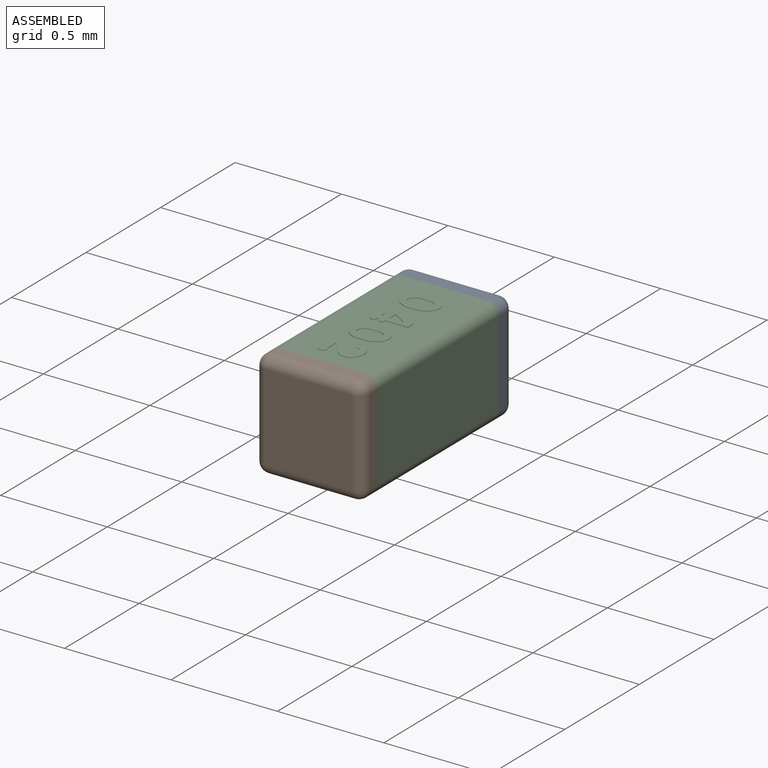
[diagram: assembled view]
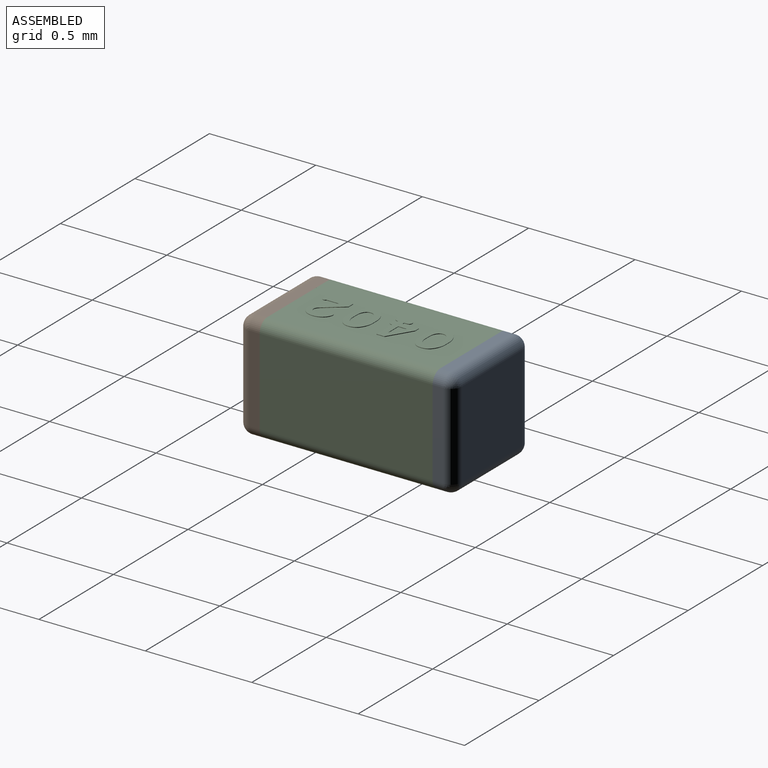
[diagram: assembled view, second angle]
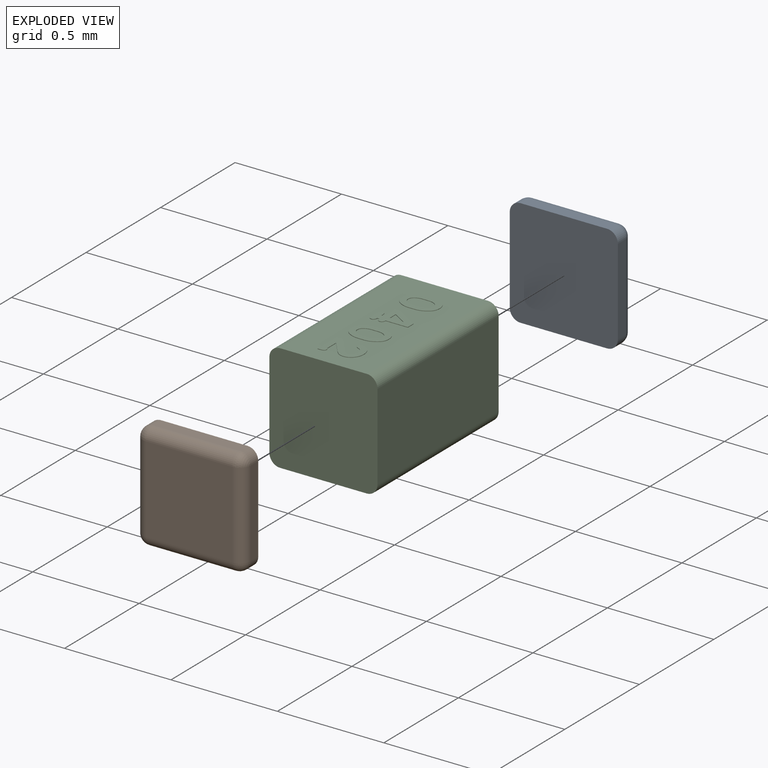
[diagram: exploded view]
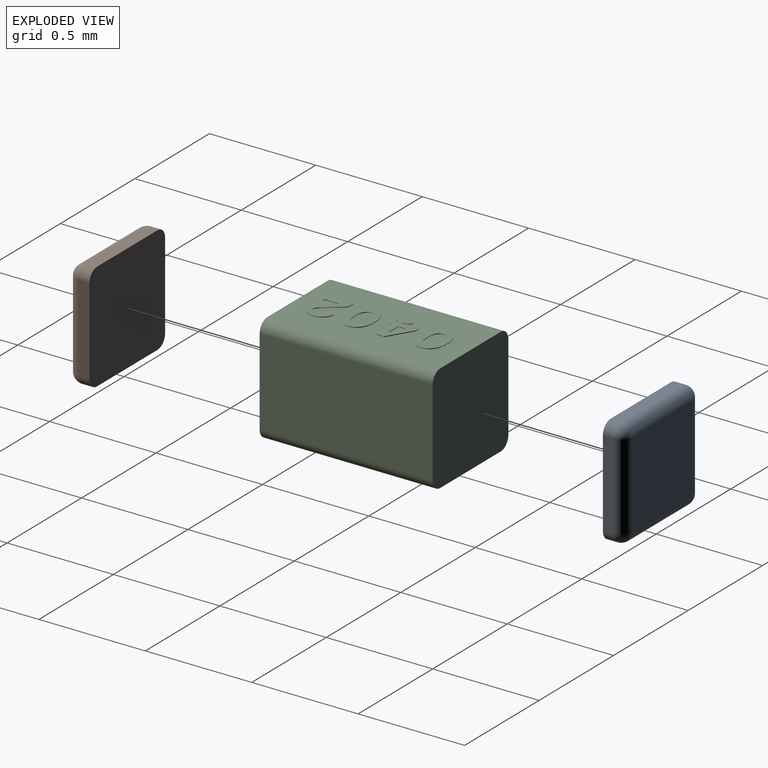
[diagram: exploded view, second angle]
ASSEMBLY  parts=3 mates=2
PART A: 18 faces, bbox 0.1x0.5x0.5 mm
  f0: plane 0.51x0.51mm, normal (1,0,0), area 0.3mm2, adj f1,f2,f3,f4,f5,f6,f7,f8
  f1: cylinder r=0.05mm len=0.05mm, axis (1,0,0), area 0mm2, adj f0,f2,f8,f9
  f2: plane 0.41x0.05mm, normal (0,1,0), area 0mm2, adj f0,f1,f3,f10
  f3: cylinder r=0.05mm len=0.05mm, axis (1,0,0), area 0mm2, adj f0,f2,f4,f11
  f4: plane 0.41x0.05mm, normal (0,0,-1), area 0mm2, adj f0,f3,f5,f12
  f5: cylinder r=0.05mm len=0.05mm, axis (1,0,0), area 0mm2, adj f0,f4,f6,f13
  f6: plane 0.41x0.05mm, normal (0,-1,0), area 0mm2, adj f0,f5,f7,f14
  f7: cylinder r=0.05mm len=0.05mm, axis (1,0,0), area 0mm2, adj f0,f6,f8,f15
  f8: plane 0.41x0.05mm, normal (0,0,1), area 0mm2, adj f0,f1,f7,f16
  f9: sphere r=0.05mm, area 0mm2, adj f1,f10,f16
  f10: cylinder r=0.05mm len=0.41mm, axis (0,0,-1), area 0mm2, adj f2,f9,f11,f17
  f11: sphere r=0.05mm, area 0mm2, adj f3,f10,f12
  f12: cylinder r=0.05mm len=0.41mm, axis (0,-1,0), area 0mm2, adj f4,f11,f13,f17
  f13: sphere r=0.05mm, area 0mm2, adj f5,f12,f14
  f14: cylinder r=0.05mm len=0.41mm, axis (0,0,1), area 0mm2, adj f6,f13,f15,f17
  f15: sphere r=0.05mm, area 0mm2, adj f7,f14,f16
  f16: cylinder r=0.05mm len=0.41mm, axis (0,1,0), area 0mm2, adj f8,f9,f15,f17
  f17: plane 0.41x0.41mm, normal (-1,0,0), area 0.2mm2, adj f10,f12,f14,f16
PART B: 18 faces, bbox 0.1x0.5x0.5 mm
  f0: plane 0.51x0.51mm, normal (-1,0,0), area 0.3mm2, adj f1,f2,f3,f4,f5,f6,f7,f8
  f1: plane 0.41x0.05mm, normal (0,0,1), area 0mm2, adj f0,f2,f8,f9
  f2: cylinder r=0.05mm len=0.05mm, axis (-1,0,0), area 0mm2, adj f0,f1,f3,f10
  f3: plane 0.41x0.05mm, normal (0,1,0), area 0mm2, adj f0,f2,f4,f11
  f4: cylinder r=0.05mm len=0.05mm, axis (-1,0,0), area 0mm2, adj f0,f3,f5,f12
  f5: plane 0.41x0.05mm, normal (0,0,-1), area 0mm2, adj f0,f4,f6,f13
  f6: cylinder r=0.05mm len=0.05mm, axis (-1,0,0), area 0mm2, adj f0,f5,f7,f14
  f7: plane 0.41x0.05mm, normal (0,-1,0), area 0mm2, adj f0,f6,f8,f15
  f8: cylinder r=0.05mm len=0.05mm, axis (-1,0,0), area 0mm2, adj f0,f1,f7,f16
  f9: cylinder r=0.05mm len=0.41mm, axis (0,1,0), area 0mm2, adj f1,f10,f16,f17
  f10: sphere r=0.05mm, area 0mm2, adj f2,f9,f11
  f11: cylinder r=0.05mm len=0.41mm, axis (0,0,-1), area 0mm2, adj f3,f10,f12,f17
  f12: sphere r=0.05mm, area 0mm2, adj f4,f11,f13
  f13: cylinder r=0.05mm len=0.41mm, axis (0,-1,0), area 0mm2, adj f5,f12,f14,f17
  f14: sphere r=0.05mm, area 0mm2, adj f6,f13,f15
  f15: cylinder r=0.05mm len=0.41mm, axis (0,0,1), area 0mm2, adj f7,f14,f16,f17
  f16: sphere r=0.05mm, area 0mm2, adj f8,f9,f15
  f17: plane 0.41x0.41mm, normal (1,0,0), area 0.2mm2, adj f9,f11,f13,f15
PART C: 84 faces, bbox 0.8x0.5x0.5 mm
  f0: plane 0.81x0.41mm, normal (0,-1,0), area 0.3mm2, adj f1,f2,f3,f4
  f1: plane 0.51x0.51mm, normal (1,0,0), area 0.3mm2, adj f0,f2,f4,f5,f6,f7,f8,f9
  f2: cylinder r=0.05mm len=0.81mm, axis (1,0,0), area 0.1mm2, adj f0,f1,f3,f9
  f3: plane 0.51x0.51mm, normal (-1,0,0), area 0.3mm2, adj f0,f2,f4,f5,f6,f7,f8,f9
  f4: cylinder r=0.05mm len=0.81mm, axis (-1,0,0), area 0.1mm2, adj f0,f1,f3,f5
  f5: plane 0.81x0.41mm, normal (0,0,-1), area 0.3mm2, adj f1,f3,f4,f6
  f6: cylinder r=0.05mm len=0.81mm, axis (1,0,0), area 0.1mm2, adj f1,f3,f5,f7
  f7: plane 0.81x0.41mm, normal (0,1,0), area 0.3mm2, adj f1,f3,f6,f8,f10,f11,f12,f13
  f8: cylinder r=0.05mm len=0.81mm, axis (-1,0,0), area 0.1mm2, adj f1,f3,f7,f9
  f9: plane 0.81x0.41mm, normal (0,0,1), area 0.3mm2, adj f1,f2,f3,f8
  f10: plane 0.01x0mm, normal (0,0,-1), area 0mm2, adj f7,f11,f24,f54
  f11: extruded ~0.02x0.01mm, area 0mm2, adj f7,f10,f12,f54
  f12: bspline ~0.02x0.01mm, area 0mm2, adj f7,f11,f13,f54
  f13: plane 0.04x0mm, normal (0,0,1), area 0mm2, adj f7,f12,f14,f54
  f14: extruded ~0.02x0.01mm, area 0mm2, adj f7,f13,f15,f54
  f15: sphere r=0.02mm, area 0mm2, adj f7,f14,f16,f54
  f16: plane 0.01x0mm, normal (1,0,0), area 0mm2, adj f7,f15,f17,f54
  f17: extruded ~0.02x0.01mm, area 0mm2, adj f7,f16,f18,f54
  f18: sphere r=0.02mm, area 0mm2, adj f7,f17,f19,f54
  f19: plane 0.1x0mm, normal (1,0,0), area 0mm2, adj f7,f18,f20,f54
  f20: plane 0.04x0mm, normal (0,0,-1), area 0mm2, adj f7,f19,f21,f54
  f21: plane 0.11x0.07mm, normal (-0.85,0,-0.52), area 0mm2, adj f7,f20,f22,f54
  f22: plane 0.02x0mm, normal (-1,0,0), area 0mm2, adj f7,f21,f23,f54
  f23: plane 0.08x0mm, normal (0,0,1), area 0mm2, adj f7,f22,f24,f54
  f24: plane 0.01x0mm, normal (-1,0,0), area 0mm2, adj f7,f10,f23,f54
  f25: plane 0.03x0mm, normal (1,0,0), area 0mm2, adj f7,f26,f30,f55
  f26: extruded ~0.07x0.06mm, area 0mm2, adj f7,f25,f27,f55
  f27: extruded ~0.07x0.06mm, area 0mm2, adj f7,f26,f28,f55
  f28: plane 0.03x0mm, normal (-1,0,0), area 0mm2, adj f7,f27,f29,f55
  f29: extruded ~0.07x0.06mm, area 0mm2, adj f7,f28,f30,f55
  f30: extruded ~0.07x0.06mm, area 0mm2, adj f7,f25,f29,f55
  f31: plane 0.03x0mm, normal (1,0,0), area 0mm2, adj f7,f32,f36,f56
  f32: extruded ~0.07x0.06mm, area 0mm2, adj f7,f31,f33,f56
  f33: extruded ~0.07x0.06mm, area 0mm2, adj f7,f32,f34,f56
  f34: plane 0.03x0mm, normal (-1,0,0), area 0mm2, adj f7,f33,f35,f56
  f35: extruded ~0.07x0.06mm, area 0mm2, adj f7,f34,f36,f56
  f36: extruded ~0.07x0.06mm, area 0mm2, adj f7,f31,f35,f56
  f37: cylinder r=0.01mm len=0.01mm, axis (0,-1,0), area 0mm2, adj f7,f38,f53,f57
  f38: cylinder r=0.03mm len=0.01mm, axis (0,1,0), area 0mm2, adj f7,f37,f39,f57
  f39: cylinder r=0.04mm len=0.03mm, axis (0,1,0), area 0mm2, adj f7,f38,f40,f57
  f40: extruded ~0.03x0.02mm, area 0mm2, adj f7,f39,f41,f57
  f41: cylinder r=0.03mm len=0.02mm, axis (0,1,0), area 0mm2, adj f7,f40,f42,f57
  f42: extruded ~0.09x0.08mm, area 0mm2, adj f7,f41,f43,f57
  f43: plane 0.03x0mm, normal (-1,0,0), area 0mm2, adj f7,f42,f44,f57
  f44: plane 0.13x0mm, normal (0,0,1), area 0mm2, adj f7,f43,f45,f57
  f45: plane 0.01x0mm, normal (1,0,0), area 0mm2, adj f7,f44,f46,f57
  f46: extruded ~0.02x0.01mm, area 0mm2, adj f7,f45,f47,f57
  f47: cylinder r=0.02mm len=0.01mm, axis (0,-1,0), area 0mm2, adj f7,f46,f48,f57
  f48: plane 0.06x0mm, normal (0,0,-1), area 0mm2, adj f7,f47,f49,f57
  f49: plane 0.06x0.05mm, normal (0.62,0,0.78), area 0mm2, adj f7,f48,f50,f57
  f50: extruded ~0.05x0.03mm, area 0mm2, adj f7,f49,f51,f57
  f51: extruded ~0.06x0.05mm, area 0mm2, adj f7,f50,f52,f57
  f52: extruded ~0.06x0.05mm, area 0mm2, adj f7,f51,f53,f57
  f53: cylinder r=0.02mm len=0.02mm, axis (0,-1,0), area 0mm2, adj f7,f37,f52,f57
  f54: plane 0.17x0.12mm, normal (0,1,0), area 0mm2, adj f10,f11,f12,f13,f14,f15,f16,f17
  f55: plane 0.18x0.12mm, normal (0,1,0), area 0mm2, adj f25,f26,f27,f28,f29,f30,f61,f62
  f56: plane 0.18x0.12mm, normal (0,1,0), area 0mm2, adj f31,f32,f33,f34,f35,f36,f71,f72
  f57: plane 0.18x0.13mm, normal (0,1,0), area 0mm2, adj f37,f38,f39,f40,f41,f42,f43,f44
  f58: plane 0.04x0mm, normal (0,0,-1), area 0mm2, adj f54,f59,f60,f81
  f59: plane 0.07x0mm, normal (-1,0,0), area 0mm2, adj f54,f58,f60,f81
  f60: plane 0.07x0.04mm, normal (0.85,0,0.52), area 0mm2, adj f54,f58,f59,f81
  f61: cylinder r=0.06mm len=0.04mm, axis (0,1,0), area 0mm2, adj f55,f62,f70,f82
  f62: cylinder r=0.02mm len=0.02mm, axis (0,1,0), area 0mm2, adj f55,f61,f63,f82
  f63: cylinder r=0.03mm len=0.02mm, axis (0,1,0), area 0mm2, adj f55,f62,f64,f82
  f64: cylinder r=0.05mm len=0.04mm, axis (0,1,0), area 0mm2, adj f55,f63,f65,f82
  f65: plane 0.03x0mm, normal (-1,0,0), area 0mm2, adj f55,f64,f66,f82
  f66: cylinder r=0.06mm len=0.04mm, axis (0,1,0), area 0mm2, adj f55,f65,f67,f82
  f67: cylinder r=0.02mm len=0.02mm, axis (0,1,0), area 0mm2, adj f55,f66,f68,f82
  f68: cylinder r=0.03mm len=0.02mm, axis (0,1,0), area 0mm2, adj f55,f67,f69,f82
  f69: cylinder r=0.05mm len=0.04mm, axis (0,1,0), area 0mm2, adj f55,f68,f70,f82
  f70: plane 0.03x0mm, normal (1,0,0), area 0mm2, adj f55,f61,f69,f82
  f71: cylinder r=0.06mm len=0.04mm, axis (0,1,0), area 0mm2, adj f56,f72,f80,f83
  f72: cylinder r=0.02mm len=0.02mm, axis (0,1,0), area 0mm2, adj f56,f71,f73,f83
  f73: cylinder r=0.03mm len=0.02mm, axis (0,1,0), area 0mm2, adj f56,f72,f74,f83
  f74: cylinder r=0.05mm len=0.04mm, axis (0,1,0), area 0mm2, adj f56,f73,f75,f83
  f75: plane 0.03x0mm, normal (-1,0,0), area 0mm2, adj f56,f74,f76,f83
  f76: cylinder r=0.06mm len=0.04mm, axis (0,1,0), area 0mm2, adj f56,f75,f77,f83
  f77: cylinder r=0.02mm len=0.02mm, axis (0,1,0), area 0mm2, adj f56,f76,f78,f83
  f78: cylinder r=0.03mm len=0.02mm, axis (0,1,0), area 0mm2, adj f56,f77,f79,f83
  f79: cylinder r=0.05mm len=0.04mm, axis (0,1,0), area 0mm2, adj f56,f78,f80,f83
  f80: plane 0.03x0mm, normal (1,0,0), area 0mm2, adj f56,f71,f79,f83
  f81: plane 0.07x0.04mm, normal (0,1,0), area 0mm2, adj f58,f59,f60
  f82: plane 0.12x0.07mm, normal (0,1,0), area 0mm2, adj f61,f62,f63,f64,f65,f66,f67,f68
  f83: plane 0.12x0.07mm, normal (0,1,0), area 0mm2, adj f71,f72,f73,f74,f75,f76,f77,f78
PLACE A rot(axis=(0.58,-0.58,-0.58),120deg) t=(2.96,-12.3,-0.02)mm
PLACE B rot(axis=(0.58,-0.58,-0.58),120deg) t=(2.96,-12.3,-0.02)mm
PLACE C rot(axis=(0.58,-0.58,-0.58),120deg) t=(2.96,-12.3,-0.02)mm
MATE fastened C.f1 <-> B.f0  axis (0,-1,0) through (2.96,-12.71,0.23)mm
MATE fastened A.f0 <-> C.f3  axis (0,-1,0) through (2.96,-11.9,0.23)mm
